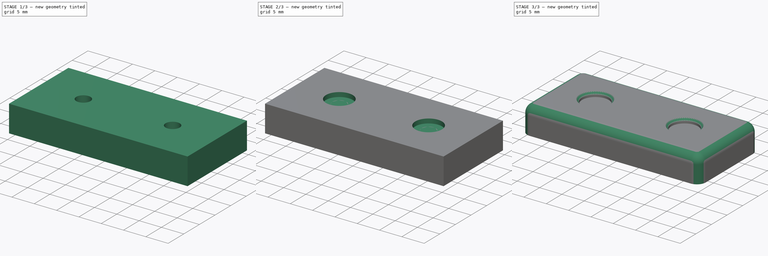
[diagram: build sequence overview — one tinted view per stage of 3, left to right]
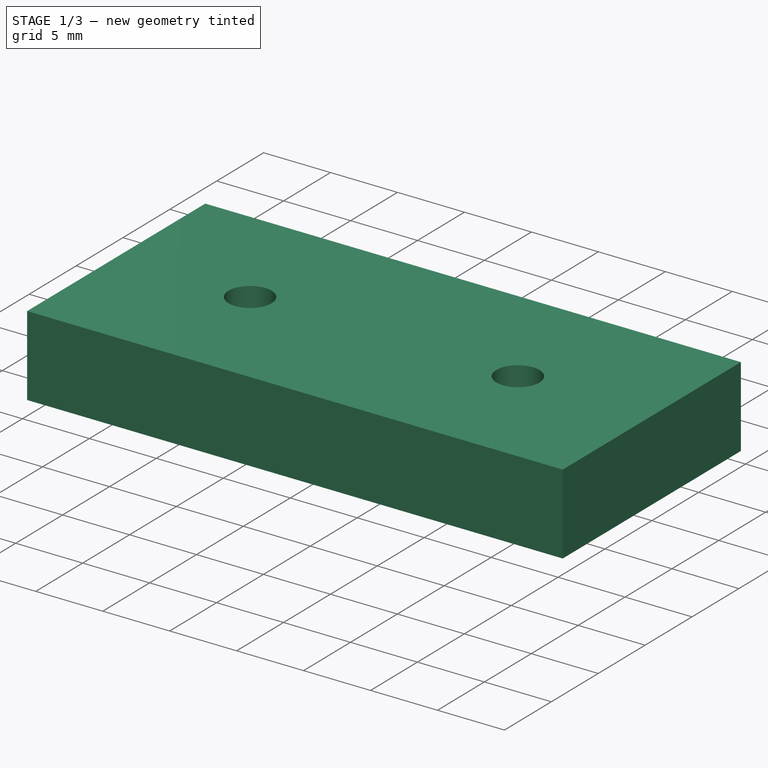
[diagram: stage 1 of 3 — iso view after this stage's code; geometry added in this stage tinted green]
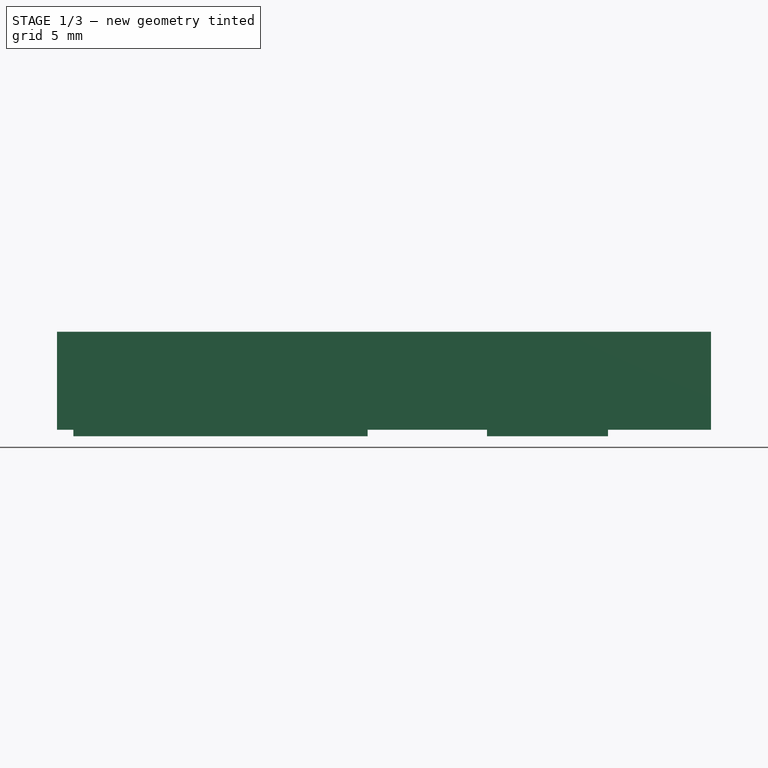
[diagram: stage 1 of 3 — front view after this stage's code; geometry added in this stage tinted green]
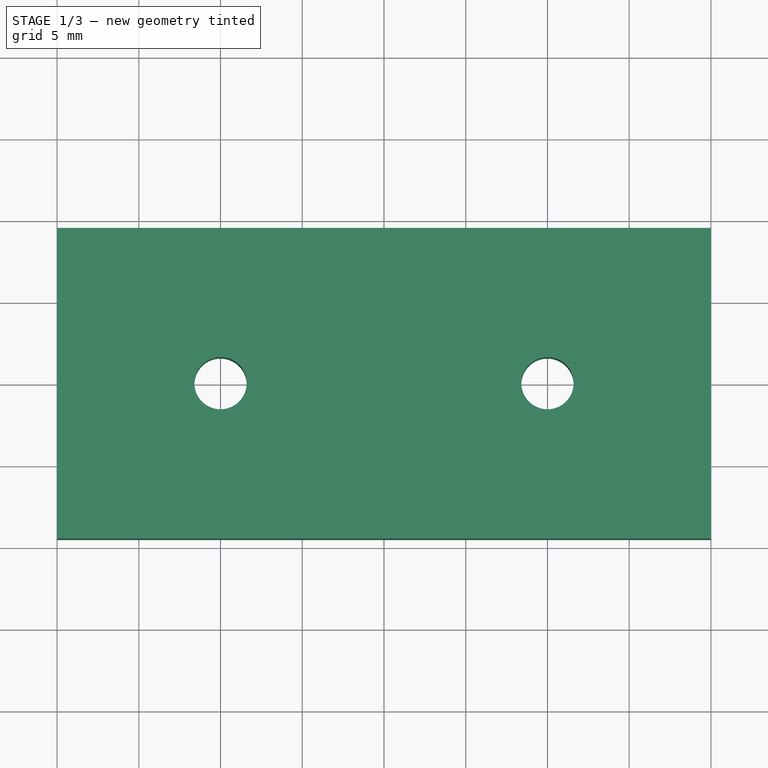
[diagram: stage 1 of 3 — top view after this stage's code; geometry added in this stage tinted green]
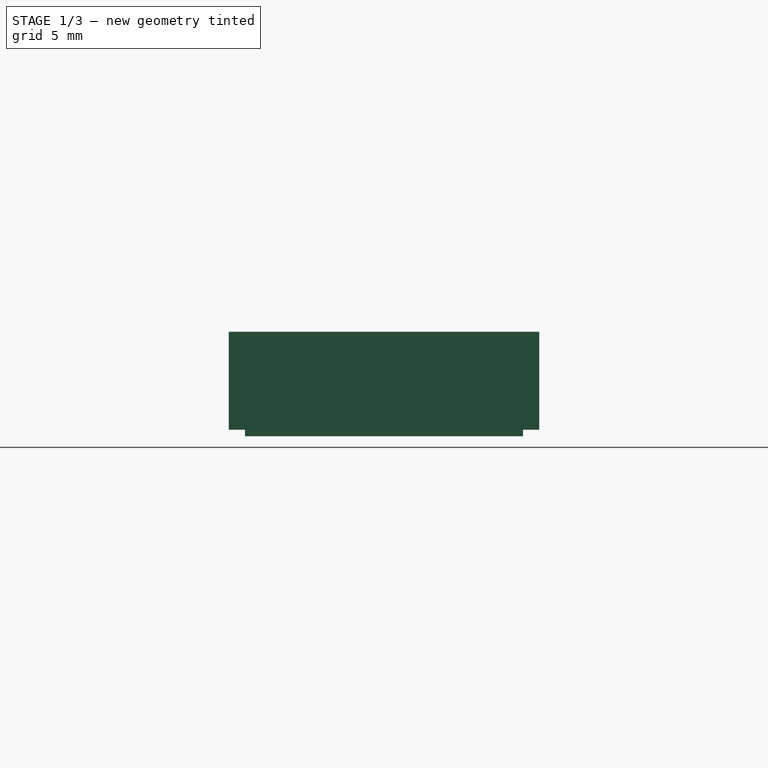
[diagram: stage 1 of 3 — right view after this stage's code; geometry added in this stage tinted green]
FCSTD DOCUMENT  (FreeCAD 0.15R4671 (Git))
Label: h-bracket-2
License: All rights reserved
LicenseURL: https://ru.wikipedia.org/wiki/All_rights_reserved
objects: Sketcher::SketchObject×6, PartDesign::Pad×3, PartDesign::Pocket×3, PartDesign::Fillet×1, Part::Chamfer×1, Part::Feature×1
note: 21 computed .brp shape members not serialized (recipe doc carries the construction recipe); baked Part::Feature solids carry a one-line shape summary decoded from their .brp

FEATURE [Sketcher::SketchObject] Sketch  label="body"
  sketch-geometry (4):
    g0: LineSegment StartX=-20 StartY=9.5 StartZ=0 EndX=20 EndY=9.5 EndZ=0
    g1: LineSegment StartX=20 StartY=9.5 StartZ=0 EndX=20 EndY=-9.5 EndZ=0
    g2: LineSegment StartX=20 StartY=-9.5 StartZ=0 EndX=-20 EndY=-9.5 EndZ=0
    g3: LineSegment StartX=-20 StartY=-9.5 StartZ=0 EndX=-20 EndY=9.5 EndZ=0
  constraints (12):
    c: Coincident(g0,g1)
    c: Coincident(g1,g2)
    c: Coincident(g2,g3)
    c: Coincident(g3,g0)
    c: Horizontal(g0)
    c: Horizontal(g2)
    c: Vertical(g1)
    c: Vertical(g3)
    c: Symmetric(g0,g0,g-2)
    c: Symmetric(g1,g0,g-1)
    c: DistanceY(g0,g2) = -19
    c: DistanceX(g0,g0) = 40
FEATURE [PartDesign::Pad] Pad
  Length = 6
  Length2 = 100
  Sketch = -> Sketch
  Type = 0
FEATURE [Sketcher::SketchObject] Sketch001  label="pads"
  ExternalGeometry = -> [Pad]
  Placement = pos=(0,0,0) rot=(1,0,0;3.14159rad)
  Support = -> Pad [Face5]
  sketch-geometry (9):
    g0: LineSegment StartX=6.3 StartY=8.5 StartZ=0 EndX=13.7 EndY=8.5 EndZ=0
    g1: LineSegment StartX=13.7 StartY=8.5 StartZ=0 EndX=13.7 EndY=-8.5 EndZ=0
    g2: LineSegment StartX=13.7 StartY=-8.5 StartZ=0 EndX=6.3 EndY=-8.5 EndZ=0
    g3: LineSegment StartX=6.3 StartY=-8.5 StartZ=0 EndX=6.3 EndY=8.5 EndZ=0
    g4: LineSegment StartX=-19 StartY=3.7 StartZ=0 EndX=-1 EndY=3.7 EndZ=0
    g5: LineSegment StartX=-1 StartY=3.7 StartZ=0 EndX=-1 EndY=-3.7 EndZ=0
    g6: LineSegment StartX=-1 StartY=-3.7 StartZ=0 EndX=-19 EndY=-3.7 EndZ=0
    g7: LineSegment StartX=-19 StartY=-3.7 StartZ=0 EndX=-19 EndY=3.7 EndZ=0
    g8: LineSegment [constr] StartX=10 StartY=15 StartZ=0 EndX=10 EndY=-18.7087 EndZ=0
  constraints (26):
    c: Coincident(g0,g1)
    c: Coincident(g1,g2)
    c: Coincident(g2,g3)
    c: Coincident(g3,g0)
    c: Horizontal(g0)
    c: Horizontal(g2)
    c: Vertical(g1)
    c: Vertical(g3)
    c: Coincident(g4,g5)
    c: Coincident(g5,g6)
    c: Coincident(g6,g7)
    c: Coincident(g7,g4)
    c: Horizontal(g4)
    c: Horizontal(g6)
    c: Vertical(g5)
    c: Vertical(g7)
    c: Symmetric(g0,g2,g-1)
    c: Symmetric(g4,g5,g-1)
    c: DistanceX(g4,g-6) = -1
    c: DistanceY(g0,g-4) = 1
    c: DistanceY(g4,g6) = -7.4
    c: Equal(g5,g0)
    c: Vertical(g8)
    c: DistanceX(g8,g-4) = 10
    c: Symmetric(g0,g0,g8)
    c: DistanceX(g-1,g4) = -1
FEATURE [PartDesign::Pad] Pad001
  Length = 0.4
  Length2 = 100
  Sketch = -> Sketch001
  Type = 0
FEATURE [Sketcher::SketchObject] Sketch002  label="m3 holes"
  ExternalGeometry = -> [Pad001]
  Placement = pos=(0,0,6) rot=(0,0,1;0rad)
  Support = -> Pad001 [Face5]
  sketch-geometry (4):
    g0: Circle CenterX=-10 CenterY=0 CenterZ=0 NormalX=0 NormalY=0 NormalZ=1 Radius=1.6
    g1: Circle CenterX=10 CenterY=0 CenterZ=0 NormalX=0 NormalY=0 NormalZ=1 Radius=1.6
    g2: LineSegment [constr] StartX=-10 StartY=0 StartZ=0 EndX=0 EndY=0 EndZ=0
    g3: LineSegment [constr] StartX=-10 StartY=0 StartZ=0 EndX=-20 EndY=0 EndZ=0
  constraints (11):
    c: PointOnObject(g1,g-1)
    c: DistanceX(g1,g-6) = 10
    c: Equal(g0,g1)
    c: Radius(g1) = 1.6
    c: Coincident(g2,g0)
    c: Coincident(g2,g-1)
    c: Horizontal(g2)
    c: Coincident(g3,g0)
    c: PointOnObject(g3,g-5)
    c: Horizontal(g3)
    c: Equal(g3,g2)
FEATURE [PartDesign::Pocket] Pocket
  Length = 5
  Sketch = -> Sketch002
  Type = 1
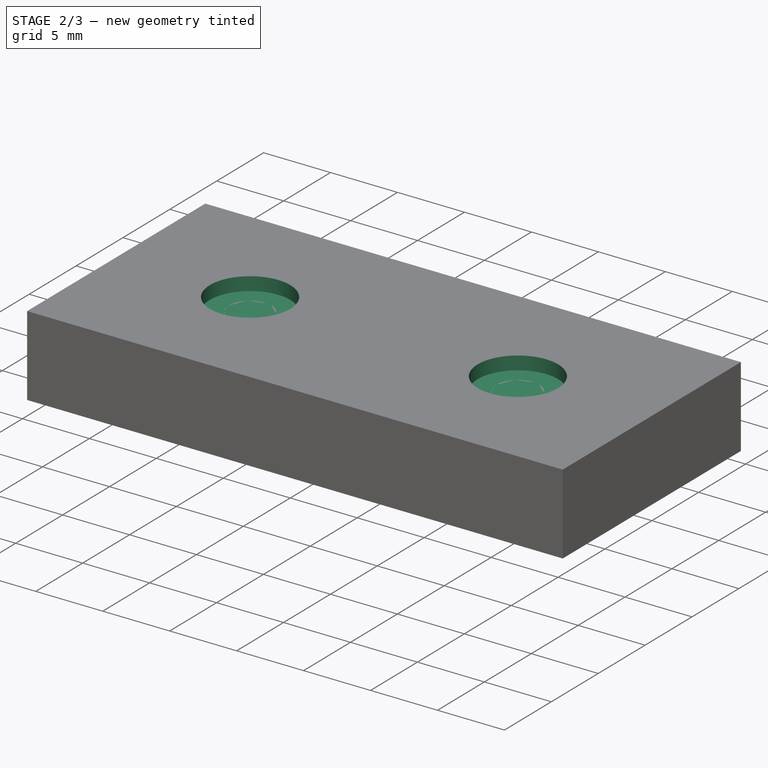
[diagram: stage 2 of 3 — iso view after this stage's code; geometry added in this stage tinted green]
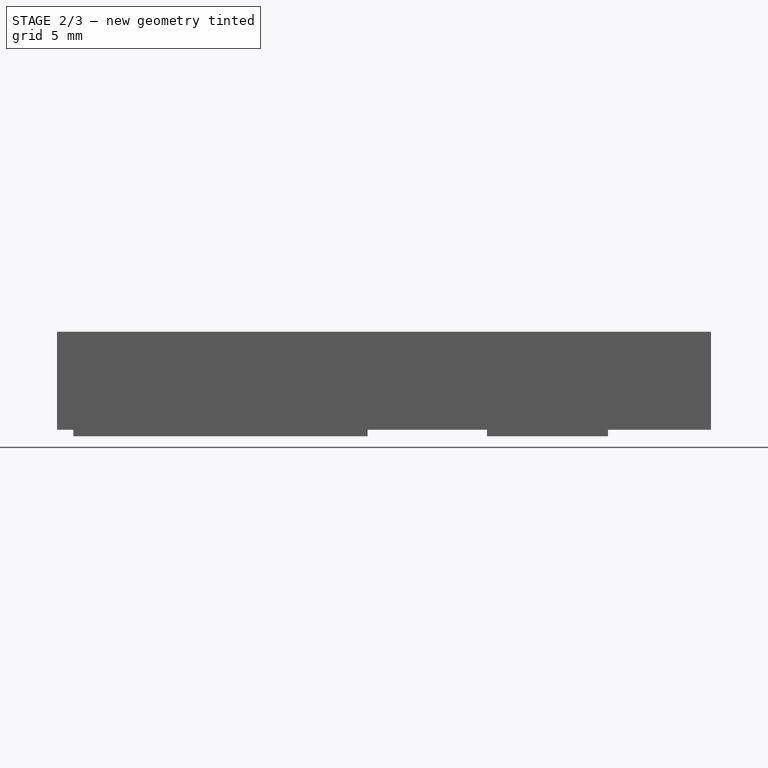
[diagram: stage 2 of 3 — front view after this stage's code; geometry added in this stage tinted green]
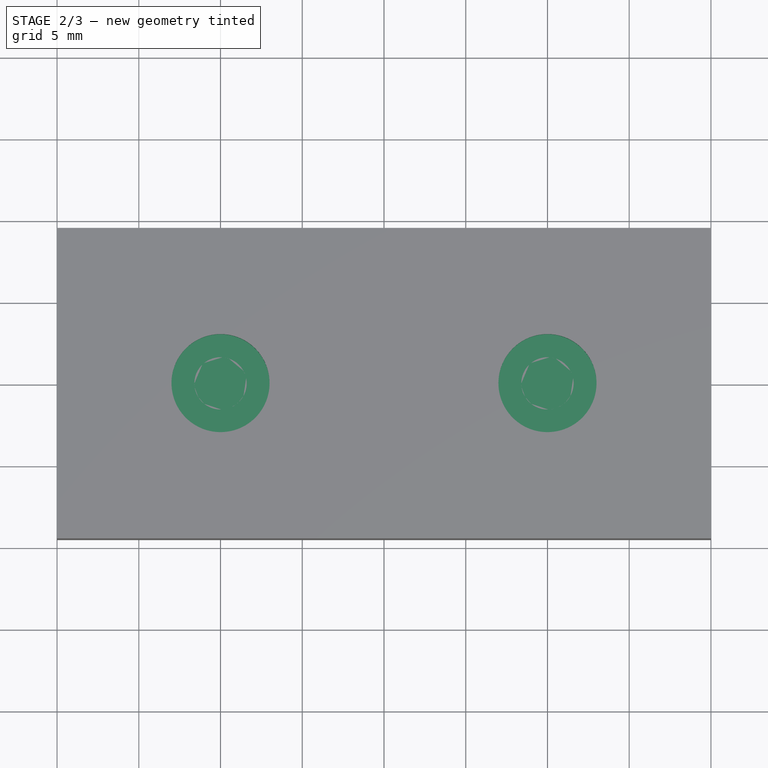
[diagram: stage 2 of 3 — top view after this stage's code; geometry added in this stage tinted green]
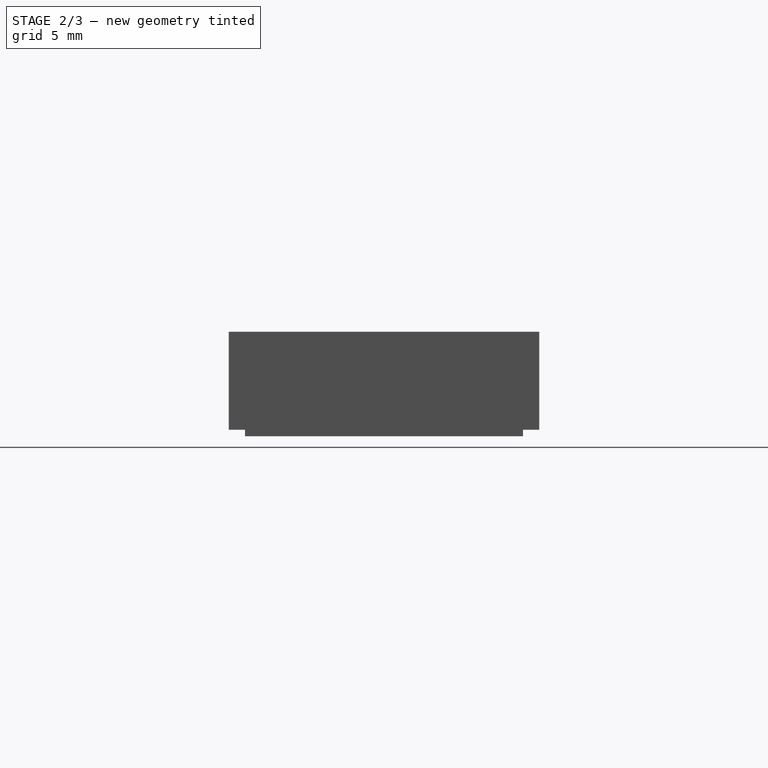
[diagram: stage 2 of 3 — right view after this stage's code; geometry added in this stage tinted green]
FEATURE [Sketcher::SketchObject] Sketch003  label="m3 heads"
  ExternalGeometry = -> [Pocket]
  Placement = pos=(0,0,6) rot=(0,0,1;0rad)
  Support = -> Pocket [Face5]
  sketch-geometry (2):
    g0: Circle CenterX=-10 CenterY=0 CenterZ=0 NormalX=0 NormalY=0 NormalZ=1 Radius=3
    g1: Circle CenterX=10 CenterY=0 CenterZ=0 NormalX=0 NormalY=0 NormalZ=1 Radius=3
  constraints (4):
    c: Equal(g0,g1)
    c: Radius(g0) = 3
    c: Coincident(g0,g-3)
    c: Coincident(g1,g-4)
FEATURE [PartDesign::Pocket] Pocket001
  Length = 1
  Sketch = -> Sketch003
  Type = 0
FEATURE [Sketcher::SketchObject] Sketch004  label="print aux"
  ExternalGeometry = -> [Pocket001]
  Placement = pos=(0,0,5) rot=(0,0,1;0rad)
  Support = -> Pocket001 [Face20]
  sketch-geometry (2):
    g0: Circle CenterX=-10 CenterY=0 CenterZ=0 NormalX=0 NormalY=0 NormalZ=1 Radius=4
    g1: Circle CenterX=10 CenterY=0 CenterZ=0 NormalX=0 NormalY=0 NormalZ=1 Radius=4
  constraints (4):
    c: Equal(g0,g1)
    c: Radius(g0) = 4
    c: Coincident(g0,g-3)
    c: Coincident(g1,g-4)
FEATURE [PartDesign::Pad] Pad002
  Length = 0.2
  Length2 = 100
  Reversed = true
  Sketch = -> Sketch004
  Type = 0
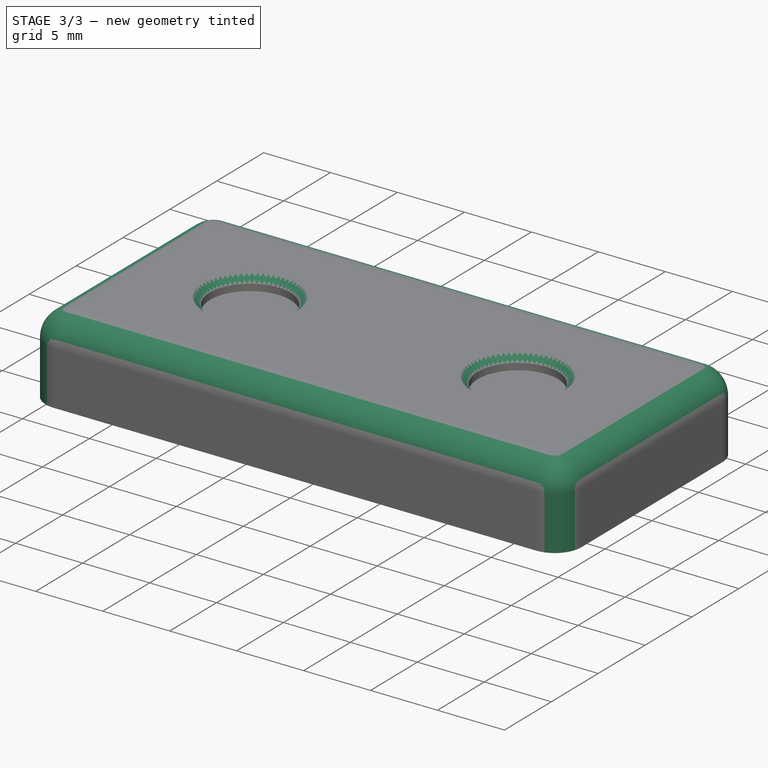
[diagram: stage 3 of 3 — iso view after this stage's code; geometry added in this stage tinted green]
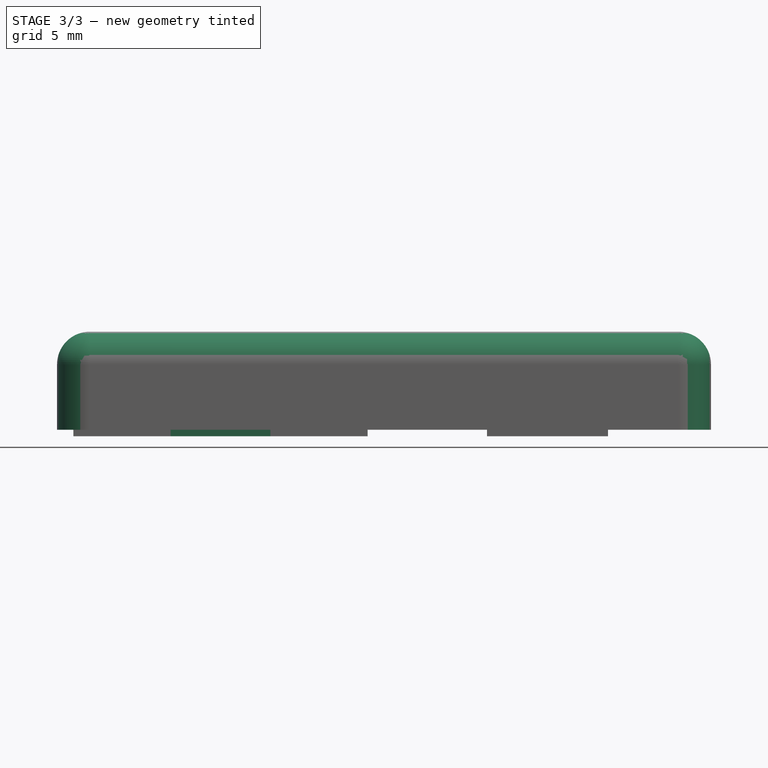
[diagram: stage 3 of 3 — front view after this stage's code; geometry added in this stage tinted green]
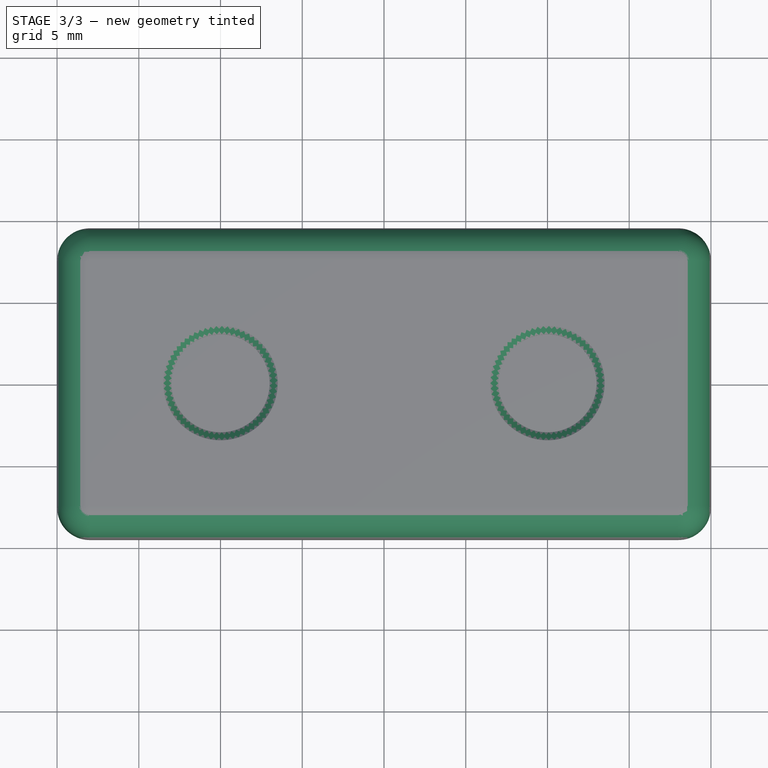
[diagram: stage 3 of 3 — top view after this stage's code; geometry added in this stage tinted green]
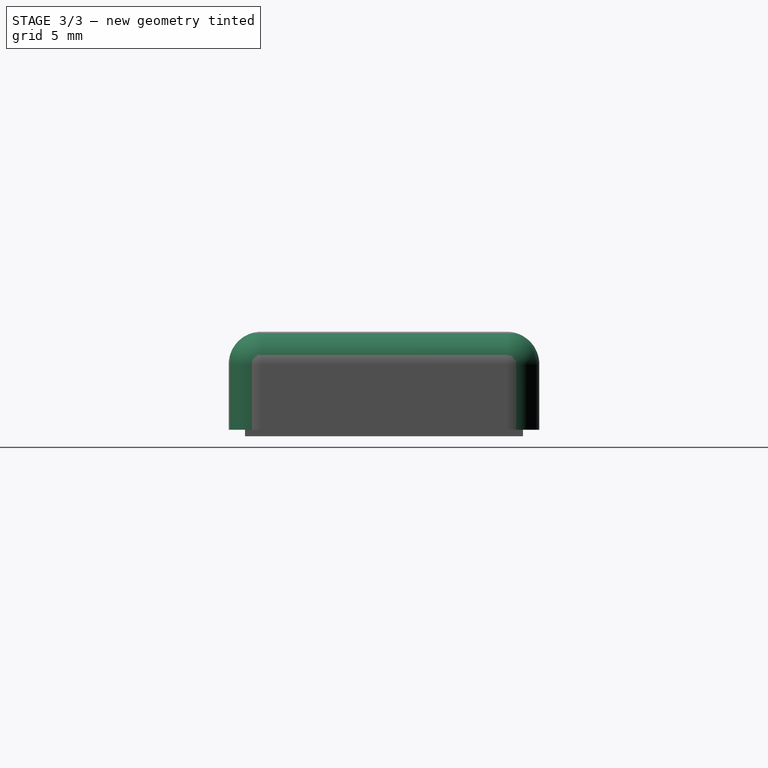
[diagram: stage 3 of 3 — right view after this stage's code; geometry added in this stage tinted green]
FEATURE [PartDesign::Fillet] Fillet
  Base = -> Pad002 [Edge5,Edge20,Edge7,Edge1,Edge8,Edge2,Edge10,Edge4]
  Radius = 2
FEATURE [Part::Chamfer] Chamfer
  Base = -> Fillet
  Edges = 2 edges r=0.5: [Edge59,Edge60]
FEATURE [Sketcher::SketchObject] Sketch005
  ExternalGeometry = -> [Chamfer]
  Placement = pos=(0,0,-0.4) rot=(1,0,0;3.14159rad)
  Support = -> Chamfer [Face36]
  sketch-geometry (12):
    g0: LineSegment StartX=-13.05 StartY=3.7 StartZ=0 EndX=-6.95 EndY=3.7 EndZ=0
    g1: LineSegment StartX=-6.95 StartY=3.7 StartZ=0 EndX=-6.95 EndY=-3 EndZ=0
    g2: LineSegment StartX=-6.95 StartY=-3 StartZ=0 EndX=-13.05 EndY=-3 EndZ=0
    g3: LineSegment StartX=-13.05 StartY=-3 StartZ=0 EndX=-13.05 EndY=3.7 EndZ=0
    g4: LineSegment [constr] StartX=-6.95 StartY=3.7 StartZ=0 EndX=-1 EndY=3.7 EndZ=0
    g5: LineSegment [constr] StartX=-13.05 StartY=3.7 StartZ=0 EndX=-19 EndY=3.7 EndZ=0
    g6: LineSegment StartX=6.3 StartY=3.05 StartZ=0 EndX=13 EndY=3.05 EndZ=0
    g7: LineSegment StartX=13 StartY=3.05 StartZ=0 EndX=13 EndY=-3.05 EndZ=0
    g8: LineSegment StartX=13 StartY=-3.05 StartZ=0 EndX=6.3 EndY=-3.05 EndZ=0
    g9: LineSegment StartX=6.3 StartY=-3.05 StartZ=0 EndX=6.3 EndY=3.05 EndZ=0
    g10: LineSegment [constr] StartX=6.3 StartY=8.5 StartZ=0 EndX=6.3 EndY=3.05 EndZ=0
    g11: LineSegment [constr] StartX=6.3 StartY=-3.05 StartZ=0 EndX=6.3 EndY=-8.5 EndZ=0
  constraints (30):
    c: Coincident(g0,g1)
    c: Coincident(g1,g2)
    c: Coincident(g2,g3)
    c: Coincident(g3,g0)
    c: Horizontal(g0)
    c: Horizontal(g2)
    c: Vertical(g1)
    c: Vertical(g3)
    c: Coincident(g4,g0)
    c: Coincident(g4,g-3)
    c: Horizontal(g4)
    c: Coincident(g5,g0)
    c: Coincident(g5,g-4)
    c: Equal(g4,g5)
    c: DistanceX(g0) = 6.1
    c: Coincident(g6,g7)
    c: Coincident(g7,g8)
    c: Coincident(g8,g9)
    c: Coincident(g9,g6)
    c: Horizontal(g6)
    c: Horizontal(g8)
    c: Vertical(g7)
    c: Vertical(g9)
    c: Coincident(g10,g-5)
    c: Coincident(g10,g6)
    c: Vertical(g10)
    c: Coincident(g11,g8)
    c: Coincident(g11,g-6)
    c: Equal(g11,g10)
    c: DistanceY(g9) = 6.1
FEATURE [PartDesign::Pocket] Pocket002
  Length = 1
  Sketch = -> Sketch005
  Type = 0
FEATURE [Part::Feature] Chamfer001
  shape: bbox 40 x 19 x 6.4 mm, 38 faces (baked)
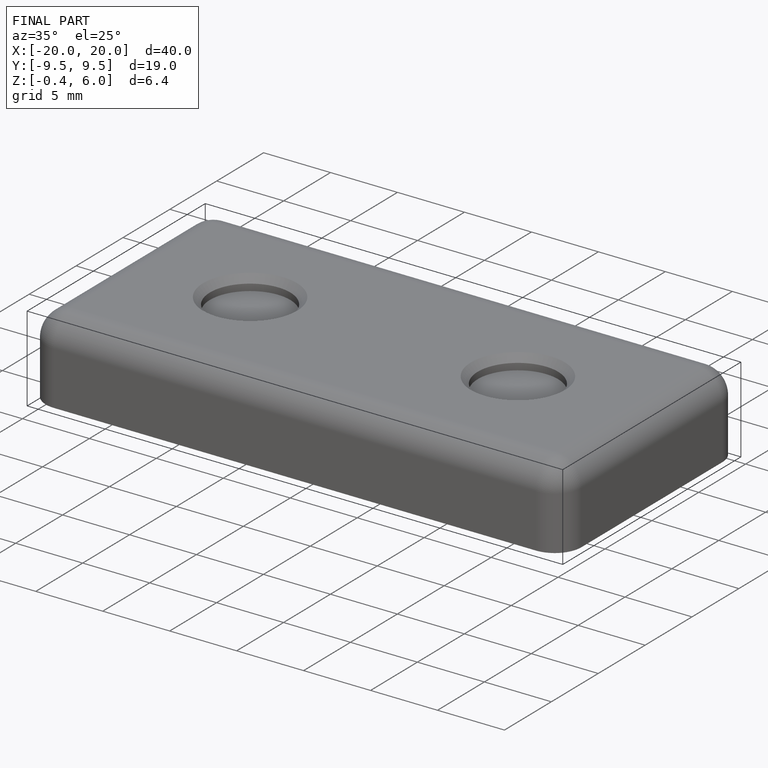
[diagram: finished part — iso view with bounding-box wireframe]
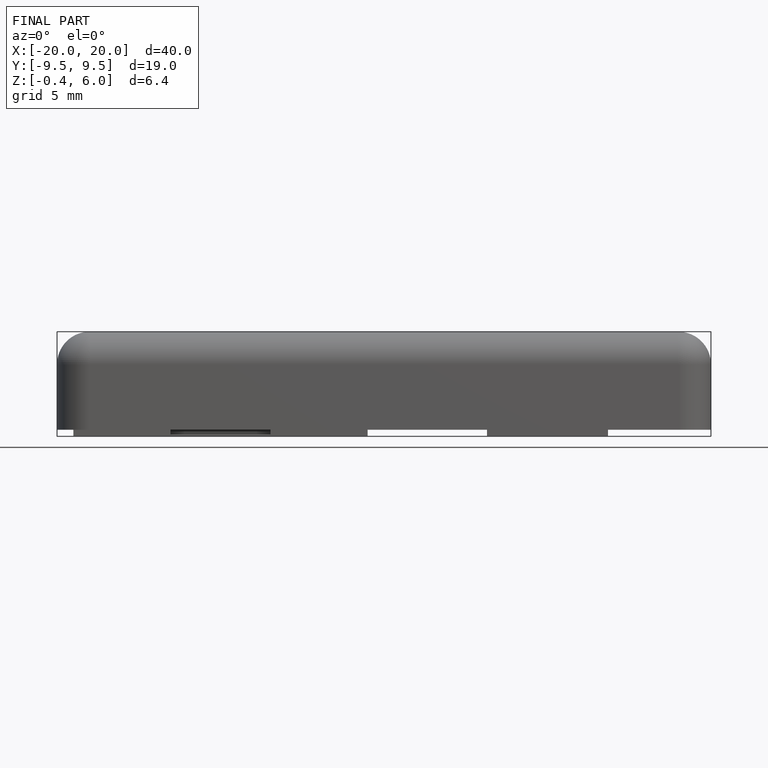
[diagram: finished part — front view with bounding-box wireframe]
